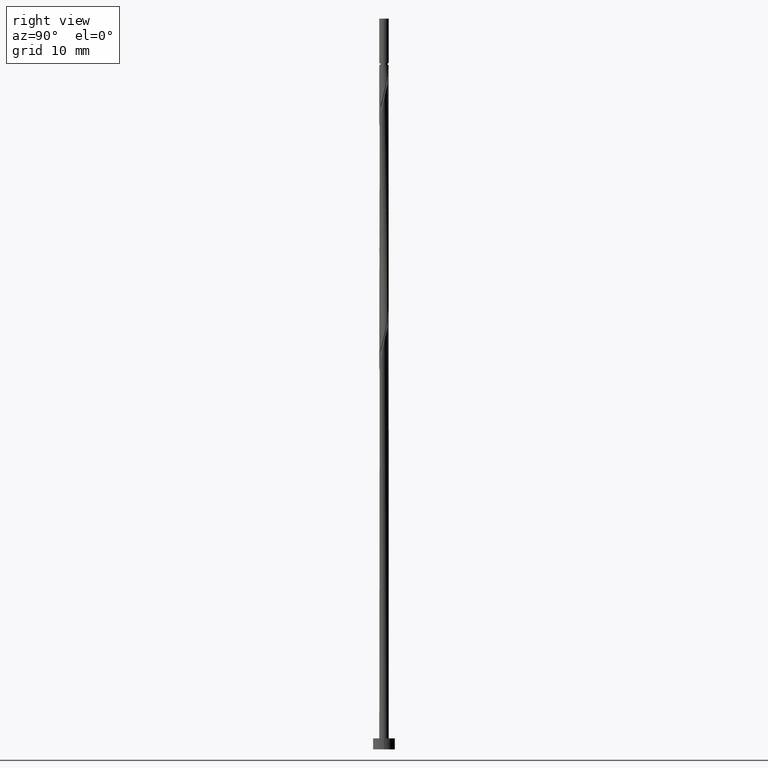
[diagram: clean part render]
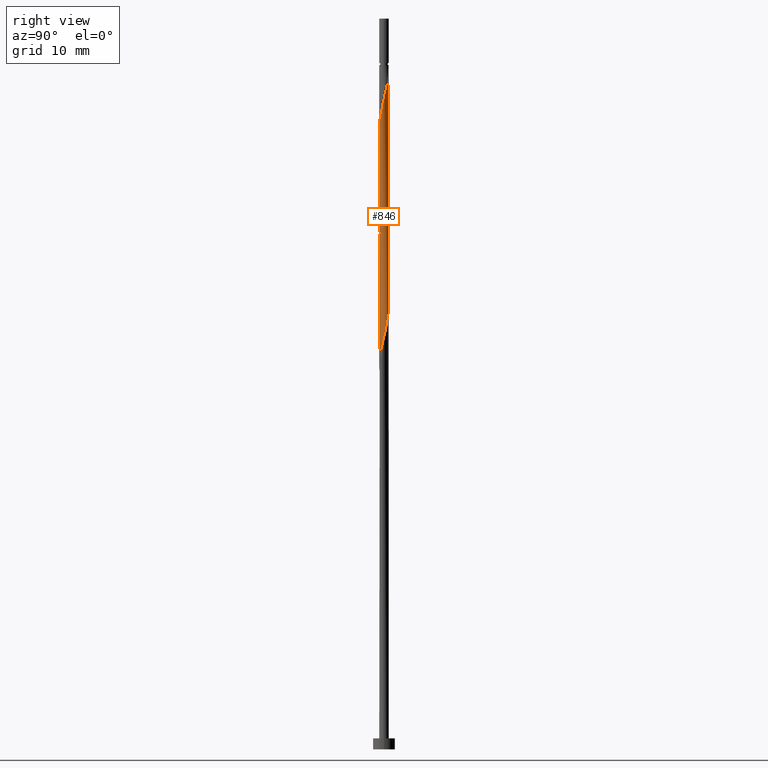
[diagram: same view with one face highlighted and labeled with its STEP entity id]
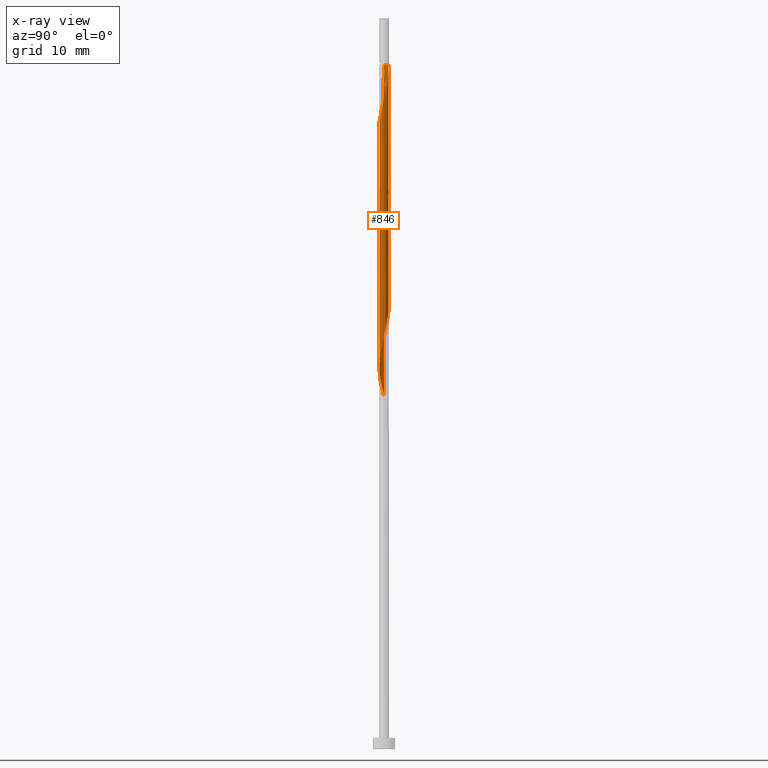
[diagram: x-ray of the same camera — body ghosted, the highlighted face saturated]
A machine part, right view. The second image highlights one B-rep face of the part: STEP entity #846.
The next image is the same camera in x-ray: the body ghosted, the highlighted face saturated — about 0% of this face is hidden behind the body in this view.
In plain terms, the highlighted cylindrical surface (bore or boss wall) has radius 0.65 mm, axis along (-0, -0, -1).
Its self-contained STEP definition (entity closure, byte-faithful):
#26 = DIRECTION ( 'NONE',  ( -0.000000000000000000, -0.000000000000000000, -1.000000000000000000 ) ) ;
#27 = CARTESIAN_POINT ( 'NONE',  ( 0.5799241893125887115, 0.3151570535356507663, 74.66752253804951067 ) ) ;
#31 = CARTESIAN_POINT ( 'NONE',  ( -0.4869839987987581442, -0.4305189716074920292, 82.53789290841986315 ) ) ;
#34 = CARTESIAN_POINT ( 'NONE',  ( 0.6500000000000000222, 7.960204194457795477E-17, 93.64900401953096321 ) ) ;
#38 = CARTESIAN_POINT ( 'NONE',  ( -0.01702808011256854576, -0.6598076069816232181, 52.44530031582726082 ) ) ;
#43 = CARTESIAN_POINT ( 'NONE',  ( -0.6500000000000000222, 0.000000000000000000, 100.0000000000000000 ) ) ;
#47 = CARTESIAN_POINT ( 'NONE',  ( 0.4371604206919311175, 0.4944965119427940370, 58.92678179730874177 ) ) ;
#48 = ORIENTED_EDGE ( 'NONE', *, *, #994, .F. ) ;
#51 = ORIENTED_EDGE ( 'NONE', *, *, #994, .T. ) ;
#56 = CARTESIAN_POINT ( 'NONE',  ( -0.09631912548336075963, -0.6428239464006625381, 84.38974476027168237 ) ) ;
#67 = CARTESIAN_POINT ( 'NONE',  ( -0.6497836468519341269, 0.01676938531377027142, 64.94530031582726792 ) ) ;
#79 = CARTESIAN_POINT ( 'NONE',  ( -0.5628961092000199784, 0.3446505534459725073, 80.22307809360505360 ) ) ;
#80 = CARTESIAN_POINT ( 'NONE',  ( 0.6500000000000007994, 1.876707672453529244E-16, 73.34652557451970267 ) ) ;
#100 = CARTESIAN_POINT ( 'NONE',  ( -0.6497836468519341269, 0.01676938531377027142, 81.61196698249392512 ) ) ;
#136 = CARTESIAN_POINT ( 'NONE',  ( 0.1293483668238605555, -0.6370000000000008988, 85.31567068619762040 ) ) ;
#144 = CARTESIAN_POINT ( 'NONE',  ( 0.6497836468519343489, -0.01676938531377050734, 56.61196698249393933 ) ) ;
#149 = CARTESIAN_POINT ( 'NONE',  ( -0.1293483668238604445, 0.6370000000000007878, 93.64900401953093478 ) ) ;
#152 = CARTESIAN_POINT ( 'NONE',  ( -0.3394145371135419698, -0.5543444524805861695, 51.05641142693836798 ) ) ;
#156 = LINE ( 'NONE', #43, #503 ) ;
#159 = CARTESIAN_POINT ( 'NONE',  ( 0.3103691097383923791, -0.5711138377943565381, 53.83418920471614655 ) ) ;
#166 =( BOUNDED_CURVE ( )  B_SPLINE_CURVE ( 2, ( #80, #604, #290, #181, #928, #389, #696, #1238, #496, #1352, #1134, #491, #683, #1252, #797, #1245, #1119, #586, #913, #485, #67, #908, #1125, #1232, #283, #689, #175, #919, #592, #1338, #804, #883, #751, #47, #1097, #899, #375, #466, #144, #674, #1217, #361, #874, #891, #159, #1315, #1323, #38, #569, #440, #152, #1106, #1192, #242, #658, #648, #865 ),
 .UNSPECIFIED., .F., .T. ) 
 B_SPLINE_CURVE_WITH_KNOTS ( ( 3, 2, 2, 2, 2, 2, 2, 2, 2, 2, 2, 2, 2, 2, 2, 2, 2, 2, 2, 2, 2, 2, 2, 2, 2, 2, 2, 2, 3 ),
 ( 0.5545248053855292847, 0.5555555555555555802, 0.5694444444444444198, 0.5833333333333333703, 0.5972222222222222099, 0.6111111111111111605, 0.6250000000000000000, 0.6388888888888888395, 0.6527777777777777901, 0.6666666666666666297, 0.6805555555555555802, 0.6944444444444444198, 0.7083333333333333703, 0.7222222222222222099, 0.7361111111111111605, 0.7500000000000000000, 0.7638888888888888395, 0.7777777777777777901, 0.7916666666666666297, 0.8055555555555555802, 0.8194444444444444198, 0.8333333333333333703, 0.8472222222222222099, 0.8611111111111111605, 0.8750000000000000000, 0.8888888888888888395, 0.9027777777777777901, 0.9166666666666666297, 0.9295248053855289516 ),
 .UNSPECIFIED. ) 
 CURVE ( )  GEOMETRIC_REPRESENTATION_ITEM ( )  RATIONAL_B_SPLINE_CURVE ( ( 0.9071930855141224770, 0.9080659294509699775, 0.9090909090909098378, 0.8952797754656443008, 0.9090909090909098378, 0.8952797754656443008, 0.9090909090909098378, 0.8952797754656443008, 0.9090909090909098378, 0.8952797754656443008, 0.9090909090909098378, 0.8952797754656443008, 0.9090909090909098378, 0.8952797754656443008, 0.9090909090909098378, 0.8952797754656443008, 0.9090909090909098378, 0.8952797754656443008, 0.9090909090909098378, 0.8952797754656443008, 0.9090909090909098378, 0.8952797754656443008, 0.9090909090909098378, 0.8952797754656443008, 0.9090909090909098378, 0.8952797754656443008, 0.9090909090909098378, 0.8952797754656443008, 0.9090909090909098378, 0.8952797754656443008, 0.9090909090909098378, 0.8952797754656443008, 0.9090909090909098378, 0.8952797754656443008, 0.9090909090909098378, 0.8952797754656443008, 0.9090909090909098378, 0.8952797754656443008, 0.9090909090909098378, 0.8952797754656443008, 0.9090909090909098378, 0.8952797754656443008, 0.9090909090909098378, 0.8952797754656443008, 0.9090909090909098378, 0.8952797754656443008, 0.9090909090909098378, 0.8952797754656443008, 0.9090909090909098378, 0.8952797754656443008, 0.9090909090909098378, 0.8952797754656443008, 0.9090909090909098378, 0.8952797754656443008, 0.9090909090909098378, 0.8963047551055844941, 0.9071930855141219219 ) ) 
 REPRESENTATION_ITEM ( '' )  );
#175 = CARTESIAN_POINT ( 'NONE',  ( -0.3103691097383923791, 0.5711138377943565381, 62.16752253804948225 ) ) ;
#181 = CARTESIAN_POINT ( 'NONE',  ( 0.6468267517712203984, -0.1313437738769074048, 72.81567068619762040 ) ) ;
#198 = AXIS2_PLACEMENT_3D ( 'NONE', #947, #718, #418 ) ;
#202 = CARTESIAN_POINT ( 'NONE',  ( -0.6500000000000004663, 0.008386088315815215868, 81.64584153392067378 ) ) ;
#211 = CARTESIAN_POINT ( 'NONE',  ( -0.09631912548336057922, 0.6428239464006623161, 77.90826327879021562 ) ) ;
#232 = EDGE_CURVE ( 'NONE', #302, #1310, #166, .T. ) ;
#242 = CARTESIAN_POINT ( 'NONE',  ( -0.5799241893125887115, -0.3151570535356508218, 49.66752253804948936 ) ) ;
#247 = ORIENTED_EDGE ( 'NONE', *, *, #232, .F. ) ;
#265 = EDGE_CURVE ( 'NONE', #370, #443, #961, .T. ) ;
#281 = CARTESIAN_POINT ( 'NONE',  ( 0.5628961092000205335, 0.3446505534459720632, 90.40826327879021562 ) ) ;
#283 = CARTESIAN_POINT ( 'NONE',  ( -0.4869839987987576446, 0.4305189716074920292, 63.09344846397541318 ) ) ;
#286 = CARTESIAN_POINT ( 'NONE',  ( -0.3103691097383923791, 0.5711138377943565381, 78.83418920471616786 ) ) ;
#290 = CARTESIAN_POINT ( 'NONE',  ( 0.6497836468519343489, -0.01676938531377050734, 73.27863364916058231 ) ) ;
#302 = VERTEX_POINT ( 'NONE', #968 ) ;
#316 = FACE_OUTER_BOUND ( 'NONE', #970, .T. ) ;
#331 = VECTOR ( 'NONE', #774, 1000.000000000000000 ) ;
#341 = CARTESIAN_POINT ( 'NONE',  ( 0.6500000000000000222, 7.960204194457795477E-17, 100.0000000000000000 ) ) ;
#344 = CARTESIAN_POINT ( 'NONE',  ( -0.6497836468519344599, -0.01676938531377019162, 80.68604105656801551 ) ) ;
#354 = CARTESIAN_POINT ( 'NONE',  ( 0.3394145371135419142, -0.5543444524805865026, 86.24159661212355843 ) ) ;
#361 = CARTESIAN_POINT ( 'NONE',  ( 0.5628961092000199784, -0.3446505534459726738, 55.22307809360503938 ) ) ;
#365 = CARTESIAN_POINT ( 'NONE',  ( 0.000000000000000000, 0.000000000000000000, 93.64900401953096321 ) ) ;
#370 = VERTEX_POINT ( 'NONE', #893 ) ;
#375 = CARTESIAN_POINT ( 'NONE',  ( 0.6163323656226186165, 0.2064810283925088419, 57.53789290841987025 ) ) ;
#389 = CARTESIAN_POINT ( 'NONE',  ( 0.5628961092000199784, -0.3446505534459726738, 71.88974476027172500 ) ) ;
#418 = DIRECTION ( 'NONE',  ( -1.000000000000000000, 0.000000000000000000, 0.000000000000000000 ) ) ;
#421 = VERTEX_POINT ( 'NONE', #1041 ) ;
#436 = EDGE_CURVE ( 'NONE', #1236, #302, #1065, .T. ) ;
#440 = CARTESIAN_POINT ( 'NONE',  ( -0.2416686535351532383, -0.6141923930183785796, 51.51937438990134410 ) ) ;
#443 = VERTEX_POINT ( 'NONE', #149 ) ;
#445 = CARTESIAN_POINT ( 'NONE',  ( 0.4371604206919311175, 0.4944965119427940370, 75.59344846397542028 ) ) ;
#448 = CARTESIAN_POINT ( 'NONE',  ( 0.4371604206919307845, -0.4944965119427946476, 86.70455957508652034 ) ) ;
#456 = CARTESIAN_POINT ( 'NONE',  ( -0.4110718883974955329, -0.5163873897690118842, 83.00085587138279664 ) ) ;
#462 = DIRECTION ( 'NONE',  ( -0.000000000000000000, -0.000000000000000000, -1.000000000000000000 ) ) ;
#466 = CARTESIAN_POINT ( 'NONE',  ( 0.6527405419326484104, 0.09780500324936637624, 57.07492994545689413 ) ) ;
#471 = LINE ( 'NONE', #341, #331 ) ;
#475 = CARTESIAN_POINT ( 'NONE',  ( -0.6048614304856205770, -0.2379971636614398034, 81.61196698249392512 ) ) ;
#477 = CARTESIAN_POINT ( 'NONE',  ( -0.01702808011257009313, 0.6598076069816236622, 93.18604105656804393 ) ) ;
#485 = CARTESIAN_POINT ( 'NONE',  ( -0.6527405419326484104, -0.09780500324936677869, 65.40826327879021562 ) ) ;
#491 = CARTESIAN_POINT ( 'NONE',  ( -0.01702808011256854576, -0.6598076069816232181, 69.11196698249393933 ) ) ;
#496 = CARTESIAN_POINT ( 'NONE',  ( 0.3103691097383923791, -0.5711138377943565381, 70.50085587138281085 ) ) ;
#503 = VECTOR ( 'NONE', #26, 1000.000000000000000 ) ;
#539 = CARTESIAN_POINT ( 'NONE',  ( -0.6500000000000000222, 0.000000000000000000, 100.0000000000000000 ) ) ;
#549 = CARTESIAN_POINT ( 'NONE',  ( 0.2416686535351527942, -0.6141923930183789127, 85.77863364916059652 ) ) ;
#555 = CARTESIAN_POINT ( 'NONE',  ( 0.6500000000000013545, 0.1059853416832949174, 73.77644508688534586 ) ) ;
#559 = CARTESIAN_POINT ( 'NONE',  ( 0.6163323656226186165, -0.2064810283925091194, 88.09344846397544870 ) ) ;
#569 = CARTESIAN_POINT ( 'NONE',  ( -0.1293483668238606943, -0.6370000000000007878, 51.98233735286430601 ) ) ;
#576 = CARTESIAN_POINT ( 'NONE',  ( -0.6500000000000010214, -0.008386088315811487948, 80.65216650514125263 ) ) ;
#579 = CARTESIAN_POINT ( 'NONE',  ( 0.09631912548336112045, 0.6428239464006625381, 92.72307809360503938 ) ) ;
#585 = CARTESIAN_POINT ( 'NONE',  ( 0.6468267517712203984, 0.1313437738769072105, 89.48233735286432022 ) ) ;
#586 = CARTESIAN_POINT ( 'NONE',  ( -0.5799241893125887115, -0.3151570535356508218, 66.33418920471616786 ) ) ;
#592 = CARTESIAN_POINT ( 'NONE',  ( -0.09631912548336057922, 0.6428239464006623161, 61.24159661212357264 ) ) ;
#601 = ORIENTED_EDGE ( 'NONE', *, *, #1309, .T. ) ;
#604 = CARTESIAN_POINT ( 'NONE',  ( 0.6500000000000005773, -0.008386088315815498628, 73.31250820058733098 ) ) ;
#627 = CARTESIAN_POINT ( 'NONE',  ( 0.2416686535351530163, 0.6141923930183786906, 76.51937438990135831 ) ) ;
#644 = CIRCLE ( 'NONE', #878, 0.6500000000000005773 ) ;
#648 = CARTESIAN_POINT ( 'NONE',  ( -0.6500000000000003553, -0.1059853416832979012, 48.77644508688535296 ) ) ;
#658 = CARTESIAN_POINT ( 'NONE',  ( -0.6163323656226186165, -0.2064810283925086198, 49.20455957508652034 ) ) ;
#666 = CARTESIAN_POINT ( 'NONE',  ( 0.6497836468519344599, 0.01676938531377024019, 89.01937438990134410 ) ) ;
#674 = CARTESIAN_POINT ( 'NONE',  ( 0.6468267517712203984, -0.1313437738769074048, 56.14900401953097742 ) ) ;
#676 = CARTESIAN_POINT ( 'NONE',  ( 0.4869839987987578667, 0.4305189716074921402, 90.87122624175319174 ) ) ;
#683 = CARTESIAN_POINT ( 'NONE',  ( -0.1293483668238606943, -0.6370000000000007878, 68.64900401953099163 ) ) ;
#689 = CARTESIAN_POINT ( 'NONE',  ( -0.4110718883974955329, 0.5163873897690118842, 62.63048550101246548 ) ) ;
#693 = ORIENTED_EDGE ( 'NONE', *, *, #436, .F. ) ;
#696 = CARTESIAN_POINT ( 'NONE',  ( 0.4869839987987575336, -0.4305189716074921957, 71.42678179730873467 ) ) ;
#718 = DIRECTION ( 'NONE',  ( -0.000000000000000000, -0.000000000000000000, -1.000000000000000000 ) ) ;
#733 = VECTOR ( 'NONE', #1297, 1000.000000000000000 ) ;
#738 = ORIENTED_EDGE ( 'NONE', *, *, #265, .F. ) ;
#751 = CARTESIAN_POINT ( 'NONE',  ( 0.3394145371135423028, 0.5543444524805860585, 59.38974476027170368 ) ) ;
#754 = ORIENTED_EDGE ( 'NONE', *, *, #1050, .T. ) ;
#760 = CARTESIAN_POINT ( 'NONE',  ( 0.5085423050022597202, -0.4048267827392227902, 87.16752253804949646 ) ) ;
#765 = CARTESIAN_POINT ( 'NONE',  ( 0.6500000000000007994, 1.876707672453529244E-16, 73.34652557451970267 ) ) ;
#769 = CARTESIAN_POINT ( 'NONE',  ( -0.6500000000000009104, -2.987793309378749236E-16, 80.61814913120889514 ) ) ;
#774 = DIRECTION ( 'NONE',  ( -0.000000000000000000, -0.000000000000000000, -1.000000000000000000 ) ) ;
#797 = CARTESIAN_POINT ( 'NONE',  ( -0.3394145371135419698, -0.5543444524805861695, 67.72307809360503938 ) ) ;
#804 = CARTESIAN_POINT ( 'NONE',  ( 0.1293483668238607776, 0.6370000000000007878, 60.31567068619764882 ) ) ;
#832 = CARTESIAN_POINT ( 'NONE',  ( -0.6048614304856200219, 0.2379971636614398589, 80.68604105656800130 ) ) ;
#846 = ADVANCED_FACE ( 'NONE', ( #316 ), #1365, .T. ) ;
#865 = CARTESIAN_POINT ( 'NONE',  ( -0.6500000000000005773, -4.416331985425468930E-16, 48.34652557451973109 ) ) ;
#874 = CARTESIAN_POINT ( 'NONE',  ( 0.4869839987987575336, -0.4305189716074921957, 54.76011513064208458 ) ) ;
#878 = AXIS2_PLACEMENT_3D ( 'NONE', #365, #462, #971 ) ;
#883 = CARTESIAN_POINT ( 'NONE',  ( 0.2416686535351530163, 0.6141923930183786906, 59.85270772323468691 ) ) ;
#891 = CARTESIAN_POINT ( 'NONE',  ( 0.4110718883974953108, -0.5163873897690118842, 54.29715216767913688 ) ) ;
#893 = CARTESIAN_POINT ( 'NONE',  ( -0.6500000000000009104, -2.987793309378748743E-16, 80.61814913120889514 ) ) ;
#899 = CARTESIAN_POINT ( 'NONE',  ( 0.5799241893125887115, 0.3151570535356507663, 58.00085587138283216 ) ) ;
#908 = CARTESIAN_POINT ( 'NONE',  ( -0.6468267517712203984, 0.1313437738769073493, 64.48233735286430601 ) ) ;
#913 = CARTESIAN_POINT ( 'NONE',  ( -0.6163323656226186165, -0.2064810283925086198, 65.87122624175320595 ) ) ;
#919 = CARTESIAN_POINT ( 'NONE',  ( -0.2096663310792894475, 0.6258402858197018581, 61.70455957508652745 ) ) ;
#928 = CARTESIAN_POINT ( 'NONE',  ( 0.6048614304856203550, -0.2379971636614397201, 72.35270772323468691 ) ) ;
#947 = CARTESIAN_POINT ( 'NONE',  ( 0.000000000000000000, 0.000000000000000000, 100.0000000000000000 ) ) ;
#953 = VERTEX_POINT ( 'NONE', #34 ) ;
#961 =( BOUNDED_CURVE ( )  B_SPLINE_CURVE ( 2, ( #769, #576, #344, #1000, #475, #975, #31, #456, #1301, #1078, #56, #991, #136, #549, #354, #448, #760, #1088, #559, #982, #666, #585, #1258, #281, #676, #1124, #1016, #1109, #579, #477, #1326 ),
 .UNSPECIFIED., .F., .T. ) 
 B_SPLINE_CURVE_WITH_KNOTS ( ( 3, 2, 2, 2, 2, 2, 2, 2, 2, 2, 2, 2, 2, 2, 2, 3 ),
 ( 0.5545248053855288406, 0.5555555555555555802, 0.5694444444444444198, 0.5833333333333332593, 0.5972222222222222099, 0.6111111111111112715, 0.6250000000000001110, 0.6388888888888889506, 0.6527777777777779011, 0.6666666666666668517, 0.6805555555555556912, 0.6944444444444446418, 0.7083333333333334814, 0.7222222222222224319, 0.7361111111111113825, 0.7500000000000002220 ),
 .UNSPECIFIED. ) 
 CURVE ( )  GEOMETRIC_REPRESENTATION_ITEM ( )  RATIONAL_B_SPLINE_CURVE ( ( 0.9071930855141230321, 0.9080659294509707546, 0.9090909090909111701, 0.8952797754656457441, 0.9090909090909111701, 0.8952797754656457441, 0.9090909090909111701, 0.8952797754656457441, 0.9090909090909111701, 0.8952797754656457441, 0.9090909090909111701, 0.8952797754656457441, 0.9090909090909111701, 0.8952797754656457441, 0.9090909090909111701, 0.8952797754656457441, 0.9090909090909111701, 0.8952797754656457441, 0.9090909090909111701, 0.8952797754656457441, 0.9090909090909111701, 0.8952797754656457441, 0.9090909090909111701, 0.8952797754656457441, 0.9090909090909111701, 0.8952797754656457441, 0.9090909090909111701, 0.8952797754656457441, 0.9090909090909111701, 0.8952797754656455220, 0.9090909090909113921 ) ) 
 REPRESENTATION_ITEM ( '' )  );
#963 = CARTESIAN_POINT ( 'NONE',  ( -0.6500000000000005773, -4.416331985425468930E-16, 48.34652557451973109 ) ) ;
#968 = CARTESIAN_POINT ( 'NONE',  ( 0.6500000000000007994, 1.876707672453529244E-16, 73.34652557451970267 ) ) ;
#970 = EDGE_LOOP ( 'NONE', ( #1150, #754, #738, #601, #247, #48, #51, #693 ) ) ;
#971 = DIRECTION ( 'NONE',  ( -1.000000000000000000, 0.000000000000000000, 0.000000000000000000 ) ) ;
#972 = CARTESIAN_POINT ( 'NONE',  ( 0.5085423050022598312, 0.4048267827392224572, 75.13048550101241574 ) ) ;
#975 = CARTESIAN_POINT ( 'NONE',  ( -0.5628961092000202004, -0.3446505534459723963, 82.07492994545690124 ) ) ;
#982 = CARTESIAN_POINT ( 'NONE',  ( 0.6527405419326484104, -0.09780500324936726442, 88.55641142693836798 ) ) ;
#991 = CARTESIAN_POINT ( 'NONE',  ( 0.01702808011256804963, -0.6598076069816232181, 84.85270772323465849 ) ) ;
#994 = EDGE_CURVE ( 'NONE', #953, #302, #471, .T. ) ;
#1000 = CARTESIAN_POINT ( 'NONE',  ( -0.6468267517712203984, -0.1313437738769072938, 81.14900401953094899 ) ) ;
#1016 = CARTESIAN_POINT ( 'NONE',  ( 0.3103691097383927122, 0.5711138377943567601, 91.79715216767908714 ) ) ;
#1034 = CARTESIAN_POINT ( 'NONE',  ( -0.4869839987987576446, 0.4305189716074920292, 79.76011513064210590 ) ) ;
#1039 = CARTESIAN_POINT ( 'NONE',  ( -0.4110718883974955329, 0.5163873897690118842, 79.29715216767914399 ) ) ;
#1041 = CARTESIAN_POINT ( 'NONE',  ( -0.6500000000000006883, 0.000000000000000000, 93.64900401953096321 ) ) ;
#1048 = CARTESIAN_POINT ( 'NONE',  ( -0.6468267517712203984, 0.1313437738769073493, 81.14900401953099163 ) ) ;
#1050 = EDGE_CURVE ( 'NONE', #421, #443, #644, .T. ) ;
#1065 =( BOUNDED_CURVE ( )  B_SPLINE_CURVE ( 2, ( #1357, #202, #100, #1048, #832, #79, #1034, #1039, #286, #1228, #211, #1274, #1147, #627, #1074, #445, #972, #27, #1084, #555, #765 ),
 .UNSPECIFIED., .F., .T. ) 
 B_SPLINE_CURVE_WITH_KNOTS ( ( 3, 2, 2, 2, 2, 2, 2, 2, 2, 2, 3 ),
 ( 0.4295248053855292847, 0.4305555555555555802, 0.4444444444444444198, 0.4583333333333333148, 0.4722222222222222099, 0.4861111111111111049, 0.5000000000000000000, 0.5138888888888888395, 0.5277777777777777901, 0.5416666666666666297, 0.5545248053855292847 ),
 .UNSPECIFIED. ) 
 CURVE ( )  GEOMETRIC_REPRESENTATION_ITEM ( )  RATIONAL_B_SPLINE_CURVE ( ( 0.9071930855141223660, 0.9080659294509699775, 0.9090909090909098378, 0.8952797754656443008, 0.9090909090909098378, 0.8952797754656443008, 0.9090909090909098378, 0.8952797754656443008, 0.9090909090909098378, 0.8952797754656443008, 0.9090909090909098378, 0.8952797754656443008, 0.9090909090909098378, 0.8952797754656443008, 0.9090909090909098378, 0.8952797754656443008, 0.9090909090909098378, 0.8952797754656443008, 0.9090909090909098378, 0.8963047551055841611, 0.9071930855141224770 ) ) 
 REPRESENTATION_ITEM ( '' )  );
#1066 = LINE ( 'NONE', #539, #733 ) ;
#1074 = CARTESIAN_POINT ( 'NONE',  ( 0.3394145371135423028, 0.5543444524805860585, 76.05641142693836798 ) ) ;
#1078 = CARTESIAN_POINT ( 'NONE',  ( -0.2096663310792895307, -0.6258402858197017471, 83.92678179730872046 ) ) ;
#1084 = CARTESIAN_POINT ( 'NONE',  ( 0.6163323656226186165, 0.2064810283925088419, 74.20455957508652034 ) ) ;
#1088 = CARTESIAN_POINT ( 'NONE',  ( 0.5799241893125886005, -0.3151570535356510439, 87.63048550101244416 ) ) ;
#1097 = CARTESIAN_POINT ( 'NONE',  ( 0.5085423050022598312, 0.4048267827392224572, 58.46381883434577986 ) ) ;
#1106 = CARTESIAN_POINT ( 'NONE',  ( -0.4371604206919307845, -0.4944965119427943145, 50.59344846397541318 ) ) ;
#1109 = CARTESIAN_POINT ( 'NONE',  ( 0.2096663310792899471, 0.6258402858197017471, 92.26011513064207747 ) ) ;
#1119 = CARTESIAN_POINT ( 'NONE',  ( -0.5085423050022598312, -0.4048267827392225682, 66.79715216767910135 ) ) ;
#1124 = CARTESIAN_POINT ( 'NONE',  ( 0.4110718883974955329, 0.5163873897690118842, 91.33418920471613944 ) ) ;
#1125 = CARTESIAN_POINT ( 'NONE',  ( -0.6048614304856200219, 0.2379971636614398589, 64.01937438990134410 ) ) ;
#1134 = CARTESIAN_POINT ( 'NONE',  ( 0.09631912548336056534, -0.6428239464006623161, 69.57492994545687282 ) ) ;
#1147 = CARTESIAN_POINT ( 'NONE',  ( 0.1293483668238607776, 0.6370000000000007878, 76.98233735286433443 ) ) ;
#1150 = ORIENTED_EDGE ( 'NONE', *, *, #1152, .F. ) ;
#1152 = EDGE_CURVE ( 'NONE', #421, #1236, #156, .T. ) ;
#1192 = CARTESIAN_POINT ( 'NONE',  ( -0.5085423050022598312, -0.4048267827392225682, 50.13048550101245127 ) ) ;
#1217 = CARTESIAN_POINT ( 'NONE',  ( 0.6048614304856203550, -0.2379971636614397201, 55.68604105656800840 ) ) ;
#1228 = CARTESIAN_POINT ( 'NONE',  ( -0.2096663310792894475, 0.6258402858197018581, 78.37122624175319174 ) ) ;
#1232 = CARTESIAN_POINT ( 'NONE',  ( -0.5628961092000199784, 0.3446505534459725073, 63.55641142693839640 ) ) ;
#1236 = VERTEX_POINT ( 'NONE', #1305 ) ;
#1238 = CARTESIAN_POINT ( 'NONE',  ( 0.4110718883974953108, -0.5163873897690118842, 70.96381883434578697 ) ) ;
#1245 = CARTESIAN_POINT ( 'NONE',  ( -0.4371604206919307845, -0.4944965119427943145, 67.26011513064207747 ) ) ;
#1252 = CARTESIAN_POINT ( 'NONE',  ( -0.2416686535351532383, -0.6141923930183785796, 68.18604105656800130 ) ) ;
#1258 = CARTESIAN_POINT ( 'NONE',  ( 0.6048614304856206880, 0.2379971636614396646, 89.94530031582726792 ) ) ;
#1274 = CARTESIAN_POINT ( 'NONE',  ( 0.01702808011256830983, 0.6598076069816229960, 77.44530031582729634 ) ) ;
#1297 = DIRECTION ( 'NONE',  ( -0.000000000000000000, -0.000000000000000000, -1.000000000000000000 ) ) ;
#1301 = CARTESIAN_POINT ( 'NONE',  ( -0.3103691097383926567, -0.5711138377943568711, 83.46381883434581539 ) ) ;
#1305 = CARTESIAN_POINT ( 'NONE',  ( -0.6500000000000005773, 3.930815572651421902E-16, 81.67985890785303127 ) ) ;
#1309 = EDGE_CURVE ( 'NONE', #370, #1310, #1066, .T. ) ;
#1310 = VERTEX_POINT ( 'NONE', #963 ) ;
#1315 = CARTESIAN_POINT ( 'NONE',  ( 0.2096663310792893087, -0.6258402858197018581, 53.37122624175318464 ) ) ;
#1323 = CARTESIAN_POINT ( 'NONE',  ( 0.09631912548336056534, -0.6428239464006623161, 52.90826327879022273 ) ) ;
#1326 = CARTESIAN_POINT ( 'NONE',  ( -0.1293483668238604445, 0.6370000000000007878, 93.64900401953093478 ) ) ;
#1338 = CARTESIAN_POINT ( 'NONE',  ( 0.01702808011256830983, 0.6598076069816229960, 60.77863364916060362 ) ) ;
#1352 = CARTESIAN_POINT ( 'NONE',  ( 0.2096663310792893087, -0.6258402858197018581, 70.03789290841984894 ) ) ;
#1357 = CARTESIAN_POINT ( 'NONE',  ( -0.6500000000000005773, 3.930815572651421902E-16, 81.67985890785303127 ) ) ;
#1365 = CYLINDRICAL_SURFACE ( 'NONE', #198, 0.6500000000000000222 ) ;